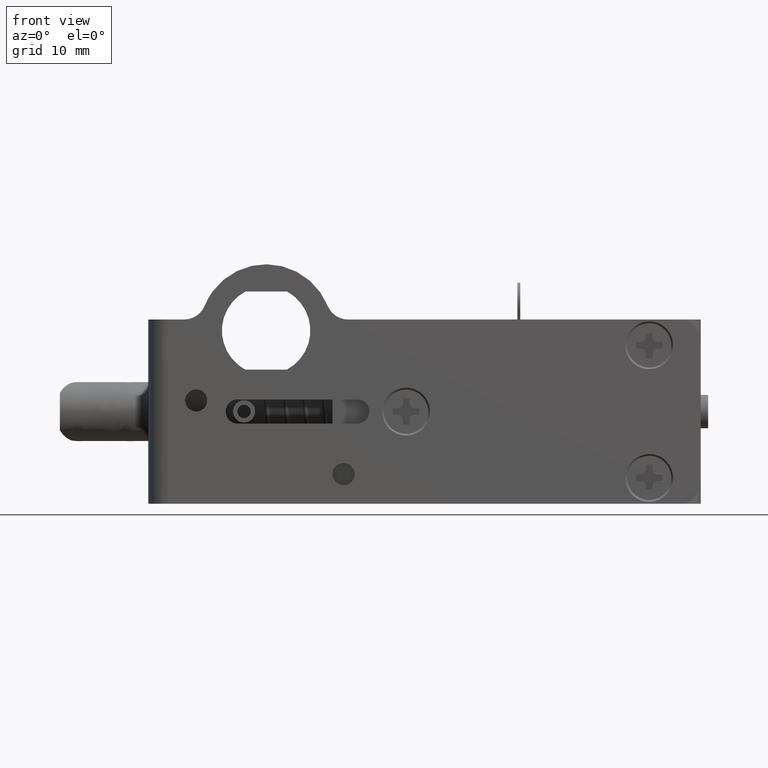
[diagram: clean part render]
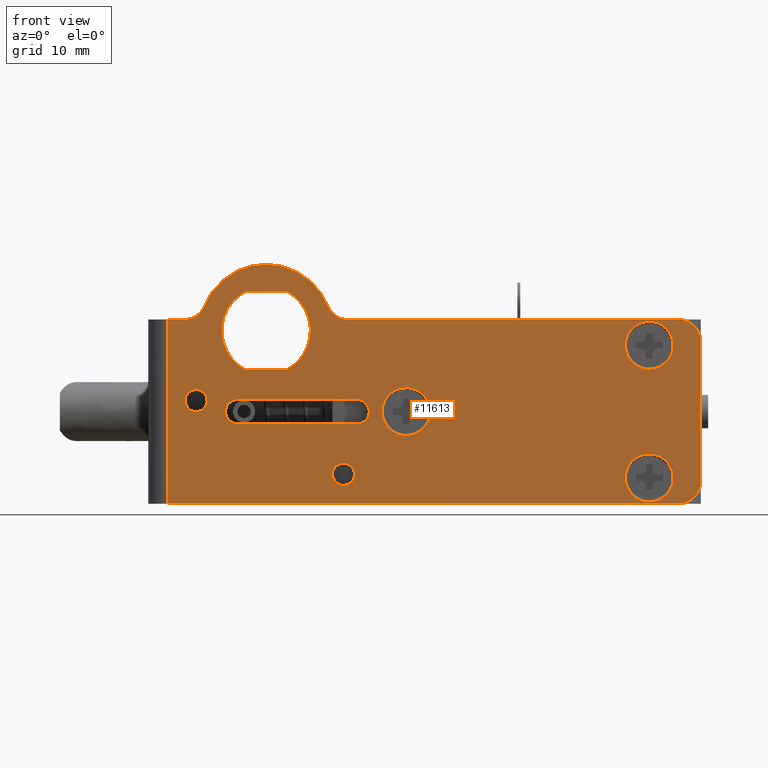
[diagram: same view with one face highlighted and labeled with its STEP entity id]
A machine part, front view. The second image highlights one B-rep face of the part: STEP entity #11613.
In plain terms, the highlighted face is a freeform B-spline surface patch.
Its self-contained STEP definition (entity closure, byte-faithful):
#8399=CARTESIAN_POINT('',(20.142758416794770,-2.124099E-012,-7.957533368981917));
#8400=VERTEX_POINT('',#8399);
#8406=CARTESIAN_POINT('',(19.0,0.0,-7.750000000000000));
#8407=VERTEX_POINT('',#8406);
#8408=CARTESIAN_POINT('',(20.142758416794774,-2.124099E-012,-7.957533368981917));
#8409=CARTESIAN_POINT('',(19.590224004740602,0.0,-7.750000000000000));
#8410=CARTESIAN_POINT('',(19.0,0.0,-7.750000000000000));
#8418=(BOUNDED_CURVE()B_SPLINE_CURVE(2,(#8408,#8409,#8410),.UNSPECIFIED.,.F.,.U.)B_SPLINE_CURVE_WITH_KNOTS((3,3),(0.440284170896686,0.500000000000000),.UNSPECIFIED.)CURVE()GEOMETRIC_REPRESENTATION_ITEM()RATIONAL_B_SPLINE_CURVE((0.893499554633045,0.930038554399266,1.0))REPRESENTATION_ITEM(''));
#8419=EDGE_CURVE('',#8400,#8407,#8418,.T.);
#8421=CARTESIAN_POINT('',(15.756061905097990,-5.793479E-011,-10.801592246068680));
#8422=VERTEX_POINT('',#8421);
#8423=CARTESIAN_POINT('',(19.0,0.0,-7.750000000000000));
#8424=CARTESIAN_POINT('',(15.942705283386474,0.0,-7.750000000000001));
#8425=CARTESIAN_POINT('',(15.756061905097992,-5.793479E-011,-10.801592246068680));
#8433=(BOUNDED_CURVE()B_SPLINE_CURVE(2,(#8423,#8424,#8425),.UNSPECIFIED.,.F.,.U.)B_SPLINE_CURVE_WITH_KNOTS((3,3),(0.500000000000000,0.739332962195213),.UNSPECIFIED.)CURVE()GEOMETRIC_REPRESENTATION_ITEM()RATIONAL_B_SPLINE_CURVE((1.0,0.719603993337942,0.976072041572997))REPRESENTATION_ITEM(''));
#8434=EDGE_CURVE('',#8407,#8422,#8433,.T.);
#8529=CARTESIAN_POINT('',(19.0,0.0,-14.250000000000000));
#8530=VERTEX_POINT('',#8529);
#8531=CARTESIAN_POINT('',(15.756061905097987,-5.793479E-011,-10.801592246068674));
#8532=CARTESIAN_POINT('',(15.749999999999998,0.0,-10.900703518838855));
#8533=CARTESIAN_POINT('',(15.750000000000000,0.0,-11.0));
#8534=CARTESIAN_POINT('',(15.749999999999995,0.0,-14.249999999999998));
#8535=CARTESIAN_POINT('',(19.0,0.0,-14.250000000000000));
#8543=(BOUNDED_CURVE()B_SPLINE_CURVE(2,(#8531,#8532,#8533,#8534,#8535),.UNSPECIFIED.,.F.,.U.)B_SPLINE_CURVE_WITH_KNOTS((3,2,3),(0.739332962195213,0.750000000000000,1.0),.UNSPECIFIED.)CURVE()GEOMETRIC_REPRESENTATION_ITEM()RATIONAL_B_SPLINE_CURVE((0.976072041572997,0.987502787848605,1.0,0.707106781186547,1.0))REPRESENTATION_ITEM(''));
#8544=EDGE_CURVE('',#8422,#8530,#8543,.T.);
#8546=CARTESIAN_POINT('',(19.0,0.0,-14.250000000000000));
#8547=CARTESIAN_POINT('',(22.250000000000000,0.0,-14.249999999999998));
#8548=CARTESIAN_POINT('',(22.250000000000000,0.0,-11.0));
#8549=CARTESIAN_POINT('',(22.250000000000004,0.0,-8.749018814026979));
#8550=CARTESIAN_POINT('',(20.142758416794766,-2.124099E-012,-7.957533368981917));
#8558=(BOUNDED_CURVE()B_SPLINE_CURVE(2,(#8546,#8547,#8548,#8549,#8550),.UNSPECIFIED.,.F.,.U.)B_SPLINE_CURVE_WITH_KNOTS((3,2,3),(0.0,0.250000000000000,0.440284170896686),.UNSPECIFIED.)CURVE()GEOMETRIC_REPRESENTATION_ITEM()RATIONAL_B_SPLINE_CURVE((1.0,0.707106781186547,1.0,0.777068226787282,0.893499554633045))REPRESENTATION_ITEM(''));
#8559=EDGE_CURVE('',#8530,#8400,#8558,.T.);
#8727=CARTESIAN_POINT('',(53.142758416794770,-2.123900E-012,-16.957533368981920));
#8728=VERTEX_POINT('',#8727);
#8734=CARTESIAN_POINT('',(52.0,0.0,-16.750000000000000));
#8735=VERTEX_POINT('',#8734);
#8736=CARTESIAN_POINT('',(53.142758416794763,-2.123900E-012,-16.957533368981917));
#8737=CARTESIAN_POINT('',(52.590224004740598,0.0,-16.749999999999996));
#8738=CARTESIAN_POINT('',(52.0,0.0,-16.750000000000000));
#8746=(BOUNDED_CURVE()B_SPLINE_CURVE(2,(#8736,#8737,#8738),.UNSPECIFIED.,.F.,.U.)B_SPLINE_CURVE_WITH_KNOTS((3,3),(0.440284170896686,0.500000000000000),.UNSPECIFIED.)CURVE()GEOMETRIC_REPRESENTATION_ITEM()RATIONAL_B_SPLINE_CURVE((0.893499554633045,0.930038554399265,1.0))REPRESENTATION_ITEM(''));
#8747=EDGE_CURVE('',#8728,#8735,#8746,.T.);
#8749=CARTESIAN_POINT('',(48.756061905097980,-5.793797E-011,-19.801592246068669));
#8750=VERTEX_POINT('',#8749);
#8751=CARTESIAN_POINT('',(52.0,0.0,-16.750000000000000));
#8752=CARTESIAN_POINT('',(48.942705283386466,0.0,-16.750000000000007));
#8753=CARTESIAN_POINT('',(48.756061905097980,-5.793797E-011,-19.801592246068676));
#8761=(BOUNDED_CURVE()B_SPLINE_CURVE(2,(#8751,#8752,#8753),.UNSPECIFIED.,.F.,.U.)B_SPLINE_CURVE_WITH_KNOTS((3,3),(0.500000000000000,0.739332962195213),.UNSPECIFIED.)CURVE()GEOMETRIC_REPRESENTATION_ITEM()RATIONAL_B_SPLINE_CURVE((1.0,0.719603993337942,0.976072041572997))REPRESENTATION_ITEM(''));
#8762=EDGE_CURVE('',#8735,#8750,#8761,.T.);
#8857=CARTESIAN_POINT('',(52.0,0.0,-23.250000000000000));
#8858=VERTEX_POINT('',#8857);
#8859=CARTESIAN_POINT('',(48.756061905097980,-5.793797E-011,-19.801592246068676));
#8860=CARTESIAN_POINT('',(48.749999999999993,0.0,-19.900703518838853));
#8861=CARTESIAN_POINT('',(48.749999999999993,0.0,-20.0));
#8862=CARTESIAN_POINT('',(48.750000000000007,0.0,-23.250000000000004));
#8863=CARTESIAN_POINT('',(52.0,0.0,-23.250000000000000));
#8871=(BOUNDED_CURVE()B_SPLINE_CURVE(2,(#8859,#8860,#8861,#8862,#8863),.UNSPECIFIED.,.F.,.U.)B_SPLINE_CURVE_WITH_KNOTS((3,2,3),(0.739332962195213,0.750000000000000,1.0),.UNSPECIFIED.)CURVE()GEOMETRIC_REPRESENTATION_ITEM()RATIONAL_B_SPLINE_CURVE((0.976072041572997,0.987502787848605,1.0,0.707106781186547,1.0))REPRESENTATION_ITEM(''));
#8872=EDGE_CURVE('',#8750,#8858,#8871,.T.);
#8874=CARTESIAN_POINT('',(52.0,0.0,-23.250000000000000));
#8875=CARTESIAN_POINT('',(55.249999999999986,0.0,-23.250000000000004));
#8876=CARTESIAN_POINT('',(55.250000000000000,0.0,-20.0));
#8877=CARTESIAN_POINT('',(55.249999999999986,0.0,-17.749018814026979));
#8878=CARTESIAN_POINT('',(53.142758416794770,-2.123900E-012,-16.957533368981917));
#8886=(BOUNDED_CURVE()B_SPLINE_CURVE(2,(#8874,#8875,#8876,#8877,#8878),.UNSPECIFIED.,.F.,.U.)B_SPLINE_CURVE_WITH_KNOTS((3,2,3),(0.0,0.250000000000000,0.440284170896686),.UNSPECIFIED.)CURVE()GEOMETRIC_REPRESENTATION_ITEM()RATIONAL_B_SPLINE_CURVE((1.0,0.707106781186547,1.0,0.777068226787282,0.893499554633045))REPRESENTATION_ITEM(''));
#8887=EDGE_CURVE('',#8858,#8728,#8886,.T.);
#9055=CARTESIAN_POINT('',(53.142758416794763,-2.123612E-012,1.042466631018080));
#9056=VERTEX_POINT('',#9055);
#9062=CARTESIAN_POINT('',(52.0,0.0,1.250000000000000));
#9063=VERTEX_POINT('',#9062);
#9064=CARTESIAN_POINT('',(53.142758416794763,-2.123612E-012,1.042466631018080));
#9065=CARTESIAN_POINT('',(52.590224004740605,0.0,1.250000000000000));
#9066=CARTESIAN_POINT('',(52.0,0.0,1.250000000000000));
#9074=(BOUNDED_CURVE()B_SPLINE_CURVE(2,(#9064,#9065,#9066),.UNSPECIFIED.,.F.,.U.)B_SPLINE_CURVE_WITH_KNOTS((3,3),(0.440284170896686,0.500000000000000),.UNSPECIFIED.)CURVE()GEOMETRIC_REPRESENTATION_ITEM()RATIONAL_B_SPLINE_CURVE((0.893499554633045,0.930038554399265,1.0))REPRESENTATION_ITEM(''));
#9075=EDGE_CURVE('',#9056,#9063,#9074,.T.);
#9077=CARTESIAN_POINT('',(48.756061905097980,-5.793614E-011,-1.801592246068674));
#9078=VERTEX_POINT('',#9077);
#9079=CARTESIAN_POINT('',(52.0,0.0,1.250000000000000));
#9080=CARTESIAN_POINT('',(48.942705283386466,0.0,1.250000000000000));
#9081=CARTESIAN_POINT('',(48.756061905097980,-5.793614E-011,-1.801592246068674));
#9089=(BOUNDED_CURVE()B_SPLINE_CURVE(2,(#9079,#9080,#9081),.UNSPECIFIED.,.F.,.U.)B_SPLINE_CURVE_WITH_KNOTS((3,3),(0.500000000000000,0.739332962195213),.UNSPECIFIED.)CURVE()GEOMETRIC_REPRESENTATION_ITEM()RATIONAL_B_SPLINE_CURVE((1.0,0.719603993337942,0.976072041572997))REPRESENTATION_ITEM(''));
#9090=EDGE_CURVE('',#9063,#9078,#9089,.T.);
#9185=CARTESIAN_POINT('',(52.0,0.0,-5.249999999999999));
#9186=VERTEX_POINT('',#9185);
#9187=CARTESIAN_POINT('',(48.756061905097980,-5.793614E-011,-1.801592246068674));
#9188=CARTESIAN_POINT('',(48.749999999999993,0.0,-1.900703518838850));
#9189=CARTESIAN_POINT('',(48.749999999999993,0.0,-2.0));
#9190=CARTESIAN_POINT('',(48.750000000000007,0.0,-5.249999999999998));
#9191=CARTESIAN_POINT('',(52.0,0.0,-5.249999999999999));
#9199=(BOUNDED_CURVE()B_SPLINE_CURVE(2,(#9187,#9188,#9189,#9190,#9191),.UNSPECIFIED.,.F.,.U.)B_SPLINE_CURVE_WITH_KNOTS((3,2,3),(0.739332962195213,0.750000000000000,1.0),.UNSPECIFIED.)CURVE()GEOMETRIC_REPRESENTATION_ITEM()RATIONAL_B_SPLINE_CURVE((0.976072041572997,0.987502787848605,1.0,0.707106781186547,1.0))REPRESENTATION_ITEM(''));
#9200=EDGE_CURVE('',#9078,#9186,#9199,.T.);
#9202=CARTESIAN_POINT('',(52.0,0.0,-5.249999999999999));
#9203=CARTESIAN_POINT('',(55.249999999999986,0.0,-5.249999999999998));
#9204=CARTESIAN_POINT('',(55.250000000000000,0.0,-2.0));
#9205=CARTESIAN_POINT('',(55.249999999999993,0.0,0.250981185973011));
#9206=CARTESIAN_POINT('',(53.142758416794763,-2.123612E-012,1.042466631018080));
#9214=(BOUNDED_CURVE()B_SPLINE_CURVE(2,(#9202,#9203,#9204,#9205,#9206),.UNSPECIFIED.,.F.,.U.)B_SPLINE_CURVE_WITH_KNOTS((3,2,3),(0.0,0.250000000000000,0.440284170896686),.UNSPECIFIED.)CURVE()GEOMETRIC_REPRESENTATION_ITEM()RATIONAL_B_SPLINE_CURVE((1.0,0.707106781186547,1.0,0.777068226787283,0.893499554633044))REPRESENTATION_ITEM(''));
#9215=EDGE_CURVE('',#9186,#9056,#9214,.T.);
#9400=CARTESIAN_POINT('',(-8.004623999407816,-9.020562E-017,-9.617688643688407));
#9401=VERTEX_POINT('',#9400);
#9407=CARTESIAN_POINT('',(-9.499999999999901,0.0,-8.0));
#9408=VERTEX_POINT('',#9407);
#9409=CARTESIAN_POINT('',(-8.004623999407816,-9.020562E-017,-9.617688643688407));
#9410=CARTESIAN_POINT('',(-7.999999999999901,0.0,-9.558935160608593));
#9411=CARTESIAN_POINT('',(-7.999999999999901,0.0,-9.500000000000000));
#9412=CARTESIAN_POINT('',(-7.999999999999902,0.0,-8.0));
#9413=CARTESIAN_POINT('',(-9.499999999999901,0.0,-8.0));
#9421=(BOUNDED_CURVE()B_SPLINE_CURVE(2,(#9409,#9410,#9411,#9412,#9413),.UNSPECIFIED.,.F.,.U.)B_SPLINE_CURVE_WITH_KNOTS((3,2,3),(0.736331300610610,0.750000000000000,1.0),.UNSPECIFIED.)CURVE()GEOMETRIC_REPRESENTATION_ITEM()RATIONAL_B_SPLINE_CURVE((0.969723356125575,0.983986122555392,1.0,0.707106781186548,1.0))REPRESENTATION_ITEM(''));
#9422=EDGE_CURVE('',#9401,#9408,#9421,.T.);
#9424=CARTESIAN_POINT('',(-10.995376000591991,-9.020562E-017,-9.382311356311590));
#9425=VERTEX_POINT('',#9424);
#9426=CARTESIAN_POINT('',(-9.499999999999901,0.0,-8.0));
#9427=CARTESIAN_POINT('',(-10.886585737307437,0.0,-8.0));
#9428=CARTESIAN_POINT('',(-10.995376000591991,-9.020562E-017,-9.382311356311590));
#9436=(BOUNDED_CURVE()B_SPLINE_CURVE(2,(#9426,#9427,#9428),.UNSPECIFIED.,.F.,.U.)B_SPLINE_CURVE_WITH_KNOTS((3,3),(0.0,0.236331300610610),.UNSPECIFIED.)CURVE()GEOMETRIC_REPRESENTATION_ITEM()RATIONAL_B_SPLINE_CURVE((1.0,0.723120658631155,0.969723356125575))REPRESENTATION_ITEM(''));
#9437=EDGE_CURVE('',#9408,#9425,#9436,.T.);
#9483=CARTESIAN_POINT('',(-9.499999999999901,0.0,-11.0));
#9484=VERTEX_POINT('',#9483);
#9485=CARTESIAN_POINT('',(-10.995376000591982,-9.020562E-017,-9.382311356311590));
#9486=CARTESIAN_POINT('',(-10.999999999999908,0.0,-9.441064839391407));
#9487=CARTESIAN_POINT('',(-10.999999999999901,0.0,-9.500000000000000));
#9488=CARTESIAN_POINT('',(-10.999999999999901,0.0,-11.0));
#9489=CARTESIAN_POINT('',(-9.499999999999901,0.0,-11.0));
#9497=(BOUNDED_CURVE()B_SPLINE_CURVE(2,(#9485,#9486,#9487,#9488,#9489),.UNSPECIFIED.,.F.,.U.)B_SPLINE_CURVE_WITH_KNOTS((3,2,3),(0.236331300610610,0.250000000000000,0.500000000000000),.UNSPECIFIED.)CURVE()GEOMETRIC_REPRESENTATION_ITEM()RATIONAL_B_SPLINE_CURVE((0.969723356125575,0.983986122555392,1.0,0.707106781186548,1.0))REPRESENTATION_ITEM(''));
#9498=EDGE_CURVE('',#9425,#9484,#9497,.T.);
#9500=CARTESIAN_POINT('',(-9.499999999999901,0.0,-11.0));
#9501=CARTESIAN_POINT('',(-8.113414262692361,0.0,-11.0));
#9502=CARTESIAN_POINT('',(-8.004623999407816,-9.020562E-017,-9.617688643688407));
#9510=(BOUNDED_CURVE()B_SPLINE_CURVE(2,(#9500,#9501,#9502),.UNSPECIFIED.,.F.,.U.)B_SPLINE_CURVE_WITH_KNOTS((3,3),(0.500000000000000,0.736331300610610),.UNSPECIFIED.)CURVE()GEOMETRIC_REPRESENTATION_ITEM()RATIONAL_B_SPLINE_CURVE((1.0,0.723120658631155,0.969723356125577))REPRESENTATION_ITEM(''));
#9511=EDGE_CURVE('',#9484,#9401,#9510,.T.);
#9582=CARTESIAN_POINT('',(11.995376000592090,-9.020562E-017,-19.617688643688410));
#9583=VERTEX_POINT('',#9582);
#9589=CARTESIAN_POINT('',(10.500000000000000,0.0,-18.0));
#9590=VERTEX_POINT('',#9589);
#9591=CARTESIAN_POINT('',(11.995376000592088,-9.020562E-017,-19.617688643688414));
#9592=CARTESIAN_POINT('',(12.000000000000002,0.0,-19.558935160608595));
#9593=CARTESIAN_POINT('',(12.0,0.0,-19.500000000000000));
#9594=CARTESIAN_POINT('',(12.0,0.0,-18.000000000000007));
#9595=CARTESIAN_POINT('',(10.500000000000000,0.0,-18.0));
#9603=(BOUNDED_CURVE()B_SPLINE_CURVE(2,(#9591,#9592,#9593,#9594,#9595),.UNSPECIFIED.,.F.,.U.)B_SPLINE_CURVE_WITH_KNOTS((3,2,3),(0.736331300610609,0.750000000000000,1.0),.UNSPECIFIED.)CURVE()GEOMETRIC_REPRESENTATION_ITEM()RATIONAL_B_SPLINE_CURVE((0.969723356125574,0.983986122555392,1.0,0.707106781186548,1.0))REPRESENTATION_ITEM(''));
#9604=EDGE_CURVE('',#9583,#9590,#9603,.T.);
#9606=CARTESIAN_POINT('',(9.004623999407915,-9.020562E-017,-19.382311356311590));
#9607=VERTEX_POINT('',#9606);
#9608=CARTESIAN_POINT('',(10.500000000000000,0.0,-18.0));
#9609=CARTESIAN_POINT('',(9.113414262692469,0.0,-18.000000000000004));
#9610=CARTESIAN_POINT('',(9.004623999407915,-9.020562E-017,-19.382311356311590));
#9618=(BOUNDED_CURVE()B_SPLINE_CURVE(2,(#9608,#9609,#9610),.UNSPECIFIED.,.F.,.U.)B_SPLINE_CURVE_WITH_KNOTS((3,3),(0.0,0.236331300610609),.UNSPECIFIED.)CURVE()GEOMETRIC_REPRESENTATION_ITEM()RATIONAL_B_SPLINE_CURVE((1.0,0.723120658631156,0.969723356125574))REPRESENTATION_ITEM(''));
#9619=EDGE_CURVE('',#9590,#9607,#9618,.T.);
#9665=CARTESIAN_POINT('',(10.500000000000000,0.0,-21.0));
#9666=VERTEX_POINT('',#9665);
#9667=CARTESIAN_POINT('',(9.004623999407915,-9.020562E-017,-19.382311356311590));
#9668=CARTESIAN_POINT('',(9.000000000000002,0.0,-19.441064839391409));
#9669=CARTESIAN_POINT('',(9.000000000000002,0.0,-19.500000000000000));
#9670=CARTESIAN_POINT('',(9.000000000000002,0.0,-21.000000000000004));
#9671=CARTESIAN_POINT('',(10.500000000000000,0.0,-21.0));
#9679=(BOUNDED_CURVE()B_SPLINE_CURVE(2,(#9667,#9668,#9669,#9670,#9671),.UNSPECIFIED.,.F.,.U.)B_SPLINE_CURVE_WITH_KNOTS((3,2,3),(0.236331300610609,0.250000000000000,0.500000000000000),.UNSPECIFIED.)CURVE()GEOMETRIC_REPRESENTATION_ITEM()RATIONAL_B_SPLINE_CURVE((0.969723356125574,0.983986122555392,1.0,0.707106781186548,1.0))REPRESENTATION_ITEM(''));
#9680=EDGE_CURVE('',#9607,#9666,#9679,.T.);
#9682=CARTESIAN_POINT('',(10.500000000000000,0.0,-21.0));
#9683=CARTESIAN_POINT('',(11.886585737307524,0.0,-20.999999999999996));
#9684=CARTESIAN_POINT('',(11.995376000592087,-9.020562E-017,-19.617688643688414));
#9692=(BOUNDED_CURVE()B_SPLINE_CURVE(2,(#9682,#9683,#9684),.UNSPECIFIED.,.F.,.U.)B_SPLINE_CURVE_WITH_KNOTS((3,3),(0.500000000000000,0.736331300610608),.UNSPECIFIED.)CURVE()GEOMETRIC_REPRESENTATION_ITEM()RATIONAL_B_SPLINE_CURVE((1.0,0.723120658631157,0.969723356125572))REPRESENTATION_ITEM(''));
#9693=EDGE_CURVE('',#9666,#9583,#9692,.T.);
#10470=CARTESIAN_POINT('',(-13.400000000000000,0.0,-23.500000000000000));
#10471=VERTEX_POINT('',#10470);
#10487=CARTESIAN_POINT('',(-13.400000000000000,0.0,1.500000000000000));
#10488=VERTEX_POINT('',#10487);
#10489=CARTESIAN_POINT('',(-13.400000000000000,0.0,1.500000000000000));
#10490=CARTESIAN_POINT('',(-13.400000000000000,0.0,-23.500000000000000));
#10491=QUASI_UNIFORM_CURVE('',1,(#10489,#10490),.UNSPECIFIED.,.F.,.U.);
#10492=EDGE_CURVE('',#10488,#10471,#10491,.T.);
#10554=CARTESIAN_POINT('',(-3.854455714975485,0.0,-9.350005999999810));
#10555=VERTEX_POINT('',#10554);
#10561=CARTESIAN_POINT('',(-3.854455715080875,0.0,-12.649993999999900));
#10562=VERTEX_POINT('',#10561);
#10563=CARTESIAN_POINT('',(-3.854455714975484,0.0,-9.350005999999807));
#10564=CARTESIAN_POINT('',(-5.500005999947242,0.0,-9.354443731134762));
#10565=CARTESIAN_POINT('',(-5.500005999999796,0.0,-10.999999999947301));
#10566=CARTESIAN_POINT('',(-5.500006000052349,0.0,-12.645556268759844));
#10567=CARTESIAN_POINT('',(-3.854455715080874,0.0,-12.649993999999911));
#10575=(BOUNDED_CURVE()B_SPLINE_CURVE(2,(#10563,#10564,#10565,#10566,#10567),.UNSPECIFIED.,.F.,.U.)B_SPLINE_CURVE_WITH_KNOTS((3,2,3),(0.0,0.500000000000000,1.0),.UNSPECIFIED.)CURVE()GEOMETRIC_REPRESENTATION_ITEM()RATIONAL_B_SPLINE_CURVE((1.0,0.708059600947159,1.0,0.708059600947159,1.0))REPRESENTATION_ITEM(''));
#10576=EDGE_CURVE('',#10555,#10562,#10575,.T.);
#10598=CARTESIAN_POINT('',(12.354455714975900,0.0,-9.350005999999810));
#10599=VERTEX_POINT('',#10598);
#10605=CARTESIAN_POINT('',(12.354455714975900,0.0,-9.350005999999810));
#10606=CARTESIAN_POINT('',(-3.854455714975485,0.0,-9.350005999999810));
#10607=QUASI_UNIFORM_CURVE('',1,(#10605,#10606),.UNSPECIFIED.,.F.,.U.);
#10608=EDGE_CURVE('',#10599,#10555,#10607,.T.);
#10649=CARTESIAN_POINT('',(12.354455715081301,0.0,-12.649993999999900));
#10650=VERTEX_POINT('',#10649);
#10656=CARTESIAN_POINT('',(12.354455715081301,0.0,-12.649993999999911));
#10657=CARTESIAN_POINT('',(14.000006000052760,0.0,-12.645556268759828));
#10658=CARTESIAN_POINT('',(14.000006000000200,0.0,-10.999999999947301));
#10659=CARTESIAN_POINT('',(14.000005999947639,0.0,-9.354443731134772));
#10660=CARTESIAN_POINT('',(12.354455714975900,0.0,-9.350005999999807));
#10668=(BOUNDED_CURVE()B_SPLINE_CURVE(2,(#10656,#10657,#10658,#10659,#10660),.UNSPECIFIED.,.F.,.U.)B_SPLINE_CURVE_WITH_KNOTS((3,2,3),(0.0,0.500000000000000,1.0),.UNSPECIFIED.)CURVE()GEOMETRIC_REPRESENTATION_ITEM()RATIONAL_B_SPLINE_CURVE((1.0,0.708059600947162,1.0,0.708059600947162,1.0))REPRESENTATION_ITEM(''));
#10669=EDGE_CURVE('',#10650,#10599,#10668,.T.);
#10686=CARTESIAN_POINT('',(-3.854455715080875,0.0,-12.649993999999900));
#10687=CARTESIAN_POINT('',(12.354455715081301,0.0,-12.649993999999900));
#10688=QUASI_UNIFORM_CURVE('',1,(#10686,#10687),.UNSPECIFIED.,.F.,.U.);
#10689=EDGE_CURVE('',#10562,#10650,#10688,.T.);
#10831=CARTESIAN_POINT('',(2.812468465788615,0.0,-5.300001993296291));
#10832=VERTEX_POINT('',#10831);
#10833=CARTESIAN_POINT('',(2.812472352593505,0.0,5.299999930745020));
#10834=VERTEX_POINT('',#10833);
#10835=CARTESIAN_POINT('',(2.812468465788614,0.0,-5.300001993296291));
#10836=CARTESIAN_POINT('',(5.999998676827532,0.0,-3.608525610148766));
#10837=CARTESIAN_POINT('',(5.999999999999597,0.0,-0.000002200077838));
#10838=CARTESIAN_POINT('',(6.000001323171661,0.0,3.608521209993084));
#10839=CARTESIAN_POINT('',(2.812472352593505,0.0,5.299999930745015));
#10847=(BOUNDED_CURVE()B_SPLINE_CURVE(2,(#10835,#10836,#10837,#10838,#10839),.UNSPECIFIED.,.F.,.U.)B_SPLINE_CURVE_WITH_KNOTS((3,2,3),(0.0,0.500000000000000,1.0),.UNSPECIFIED.)CURVE()GEOMETRIC_REPRESENTATION_ITEM()RATIONAL_B_SPLINE_CURVE((1.0,0.856955386294567,1.0,0.856955386294567,1.0))REPRESENTATION_ITEM(''));
#10848=EDGE_CURVE('',#10832,#10834,#10847,.T.);
#10887=CARTESIAN_POINT('',(-2.812471242564055,0.0,-5.300000519787729));
#10888=VERTEX_POINT('',#10887);
#10889=CARTESIAN_POINT('',(-2.812471242564055,0.0,-5.300000519787729));
#10890=CARTESIAN_POINT('',(2.812468465788615,0.0,-5.300001993296291));
#10891=QUASI_UNIFORM_CURVE('',1,(#10889,#10890),.UNSPECIFIED.,.F.,.U.);
#10892=EDGE_CURVE('',#10888,#10832,#10891,.T.);
#10924=CARTESIAN_POINT('',(-2.812472167588605,0.0,5.300000028918820));
#10925=VERTEX_POINT('',#10924);
#10926=CARTESIAN_POINT('',(-2.812472167588603,0.0,5.300000028918817));
#10927=CARTESIAN_POINT('',(-6.000000314902962,0.0,3.608521887633656));
#10928=CARTESIAN_POINT('',(-5.999999999999978,0.0,-0.000000523598773));
#10929=CARTESIAN_POINT('',(-5.999999685096993,0.0,-3.608522934831204));
#10930=CARTESIAN_POINT('',(-2.812471242564056,0.0,-5.300000519787729));
#10938=(BOUNDED_CURVE()B_SPLINE_CURVE(2,(#10926,#10927,#10928,#10929,#10930),.UNSPECIFIED.,.F.,.U.)B_SPLINE_CURVE_WITH_KNOTS((3,2,3),(0.0,0.500000000000000,1.0),.UNSPECIFIED.)CURVE()GEOMETRIC_REPRESENTATION_ITEM()RATIONAL_B_SPLINE_CURVE((1.0,0.856955449302760,1.0,0.856955449302760,1.0))REPRESENTATION_ITEM(''));
#10939=EDGE_CURVE('',#10925,#10888,#10938,.T.);
#10972=CARTESIAN_POINT('',(2.812472352593505,0.0,5.299999930745020));
#10973=CARTESIAN_POINT('',(-2.812472167588605,0.0,5.300000028918820));
#10974=QUASI_UNIFORM_CURVE('',1,(#10972,#10973),.UNSPECIFIED.,.F.,.U.);
#10975=EDGE_CURVE('',#10834,#10925,#10974,.T.);
#11128=CARTESIAN_POINT('',(59.0,0.0,-20.500000000000000));
#11129=VERTEX_POINT('',#11128);
#11135=CARTESIAN_POINT('',(55.999999842920602,0.0,-23.500000000000000));
#11136=VERTEX_POINT('',#11135);
#11137=CARTESIAN_POINT('',(55.999999842920602,0.0,-23.500000000000000));
#11138=CARTESIAN_POINT('',(57.242640576047386,0.0,-23.500000065064420));
#11139=CARTESIAN_POINT('',(58.121320288023682,0.0,-22.621320399095602));
#11140=CARTESIAN_POINT('',(59.000000000000007,0.0,-21.742640733126780));
#11141=CARTESIAN_POINT('',(59.000000000000007,0.0,-20.500000000000000));
#11149=(BOUNDED_CURVE()B_SPLINE_CURVE(2,(#11137,#11138,#11139,#11140,#11141),.UNSPECIFIED.,.F.,.U.)B_SPLINE_CURVE_WITH_KNOTS((3,2,3),(0.0,0.500000000000000,1.0),.UNSPECIFIED.)CURVE()GEOMETRIC_REPRESENTATION_ITEM()RATIONAL_B_SPLINE_CURVE((1.0,0.923879527501979,1.0,0.923879527501979,1.0))REPRESENTATION_ITEM(''));
#11150=EDGE_CURVE('',#11136,#11129,#11149,.T.);
#11173=CARTESIAN_POINT('',(59.0,0.0,-1.500000000000000));
#11174=VERTEX_POINT('',#11173);
#11180=CARTESIAN_POINT('',(59.0,0.0,-1.500000000000000));
#11181=CARTESIAN_POINT('',(59.0,0.0,-20.500000000000000));
#11182=QUASI_UNIFORM_CURVE('',1,(#11180,#11181),.UNSPECIFIED.,.F.,.U.);
#11183=EDGE_CURVE('',#11174,#11129,#11182,.T.);
#11217=CARTESIAN_POINT('',(56.0,0.0,1.500000000000000));
#11218=VERTEX_POINT('',#11217);
#11224=CARTESIAN_POINT('',(59.000000000000007,0.0,-1.500000000000000));
#11225=CARTESIAN_POINT('',(59.0,0.0,1.500000000000000));
#11226=CARTESIAN_POINT('',(56.0,0.0,1.500000000000000));
#11234=(BOUNDED_CURVE()B_SPLINE_CURVE(2,(#11224,#11225,#11226),.UNSPECIFIED.,.F.,.U.)CURVE()GEOMETRIC_REPRESENTATION_ITEM()QUASI_UNIFORM_CURVE()RATIONAL_B_SPLINE_CURVE((1.0,0.707106781186548,1.0))REPRESENTATION_ITEM(''));
#11235=EDGE_CURVE('',#11174,#11218,#11234,.T.);
#11254=CARTESIAN_POINT('',(11.124297842920360,0.0,1.500000000000000));
#11255=VERTEX_POINT('',#11254);
#11261=CARTESIAN_POINT('',(11.124297842920360,0.0,1.500000000000000));
#11262=CARTESIAN_POINT('',(56.0,0.0,1.500000000000000));
#11263=QUASI_UNIFORM_CURVE('',1,(#11261,#11262),.UNSPECIFIED.,.F.,.U.);
#11264=EDGE_CURVE('',#11255,#11218,#11263,.T.);
#11299=CARTESIAN_POINT('',(8.343223347288470,0.0,3.374999878112665));
#11300=VERTEX_POINT('',#11299);
#11306=CARTESIAN_POINT('',(8.343223347288470,0.0,3.374999878112665));
#11307=CARTESIAN_POINT('',(9.101698391932979,0.0,1.500000105903067));
#11308=CARTESIAN_POINT('',(11.124297842920360,0.0,1.500000000000004));
#11316=(BOUNDED_CURVE()B_SPLINE_CURVE(2,(#11306,#11307,#11308),.UNSPECIFIED.,.F.,.U.)CURVE()GEOMETRIC_REPRESENTATION_ITEM()QUASI_UNIFORM_CURVE()RATIONAL_B_SPLINE_CURVE((1.0,0.829156215063090,1.0))REPRESENTATION_ITEM(''));
#11317=EDGE_CURVE('',#11300,#11255,#11316,.T.);
#11357=CARTESIAN_POINT('',(-8.343223524003038,0.0,3.374999441262525));
#11358=VERTEX_POINT('',#11357);
#11364=CARTESIAN_POINT('',(8.343223347288472,0.0,3.374999878112667));
#11365=CARTESIAN_POINT('',(6.067798793532807,0.0,9.000000158854597));
#11366=CARTESIAN_POINT('',(-0.000000235619442,0.0,8.999999999999996));
#11367=CARTESIAN_POINT('',(-6.067799264771691,0.0,8.999999841145396));
#11368=CARTESIAN_POINT('',(-8.343223524003037,0.0,3.374999441262523));
#11376=(BOUNDED_CURVE()B_SPLINE_CURVE(2,(#11364,#11365,#11366,#11367,#11368),.UNSPECIFIED.,.F.,.U.)B_SPLINE_CURVE_WITH_KNOTS((3,2,3),(0.0,0.500000000000000,1.0),.UNSPECIFIED.)CURVE()GEOMETRIC_REPRESENTATION_ITEM()RATIONAL_B_SPLINE_CURVE((1.0,0.829156186187955,1.0,0.829156186187955,1.0))REPRESENTATION_ITEM(''));
#11377=EDGE_CURVE('',#11300,#11358,#11376,.T.);
#11413=CARTESIAN_POINT('',(-11.124297999999900,0.0,1.500000000000000));
#11414=VERTEX_POINT('',#11413);
#11420=CARTESIAN_POINT('',(-11.124297999999900,0.0,1.500000000000000));
#11421=CARTESIAN_POINT('',(-9.101698777491947,0.0,1.499999999999999));
#11422=CARTESIAN_POINT('',(-8.343223524003038,0.0,3.374999441262525));
#11430=(BOUNDED_CURVE()B_SPLINE_CURVE(2,(#11420,#11421,#11422),.UNSPECIFIED.,.F.,.U.)CURVE()GEOMETRIC_REPRESENTATION_ITEM()QUASI_UNIFORM_CURVE()RATIONAL_B_SPLINE_CURVE((1.0,0.829156244333146,1.0))REPRESENTATION_ITEM(''));
#11431=EDGE_CURVE('',#11414,#11358,#11430,.T.);
#11455=CARTESIAN_POINT('',(-13.400000000000000,0.0,1.500000000000000));
#11456=CARTESIAN_POINT('',(-11.124297999999900,0.0,1.500000000000000));
#11457=QUASI_UNIFORM_CURVE('',1,(#11455,#11456),.UNSPECIFIED.,.F.,.U.);
#11458=EDGE_CURVE('',#10488,#11414,#11457,.T.);
#11476=CARTESIAN_POINT('',(55.999999842920602,0.0,-23.500000000000000));
#11477=CARTESIAN_POINT('',(-13.400000000000000,0.0,-23.500000000000000));
#11478=QUASI_UNIFORM_CURVE('',1,(#11476,#11477),.UNSPECIFIED.,.F.,.U.);
#11479=EDGE_CURVE('',#11136,#10471,#11478,.T.);
#11554=CARTESIAN_POINT('',(-17.016379859674760,0.0,10.623374937008640));
#11555=CARTESIAN_POINT('',(62.616381801594081,0.0,10.623374937008640));
#11556=CARTESIAN_POINT('',(-17.016379859674760,0.0,-25.123375808726632));
#11557=CARTESIAN_POINT('',(62.616381801594081,0.0,-25.123375808726632));
#11558=B_SPLINE_SURFACE_WITH_KNOTS('',1,1,((#11554,#11556),(#11555,#11557)),.UNSPECIFIED.,.F.,.F.,.U.,(2,2),(2,2),(0.0,79.632761661268844),(0.0,35.746750745735270),.UNSPECIFIED.);
#11559=ORIENTED_EDGE('',*,*,#11458,.F.);
#11560=ORIENTED_EDGE('',*,*,#10492,.T.);
#11561=ORIENTED_EDGE('',*,*,#11479,.F.);
#11562=ORIENTED_EDGE('',*,*,#11150,.T.);
#11563=ORIENTED_EDGE('',*,*,#11183,.F.);
#11564=ORIENTED_EDGE('',*,*,#11235,.T.);
#11565=ORIENTED_EDGE('',*,*,#11264,.F.);
#11566=ORIENTED_EDGE('',*,*,#11317,.F.);
#11567=ORIENTED_EDGE('',*,*,#11377,.T.);
#11568=ORIENTED_EDGE('',*,*,#11431,.F.);
#11569=EDGE_LOOP('',(#11559,#11560,#11561,#11562,#11563,#11564,#11565,#11566,#11567,#11568));
#11570=FACE_OUTER_BOUND('',#11569,.T.);
#11571=ORIENTED_EDGE('',*,*,#10669,.F.);
#11572=ORIENTED_EDGE('',*,*,#10689,.F.);
#11573=ORIENTED_EDGE('',*,*,#10576,.F.);
#11574=ORIENTED_EDGE('',*,*,#10608,.F.);
#11575=EDGE_LOOP('',(#11571,#11572,#11573,#11574));
#11576=FACE_BOUND('',#11575,.T.);
#11577=ORIENTED_EDGE('',*,*,#10975,.F.);
#11578=ORIENTED_EDGE('',*,*,#10848,.F.);
#11579=ORIENTED_EDGE('',*,*,#10892,.F.);
#11580=ORIENTED_EDGE('',*,*,#10939,.F.);
#11581=EDGE_LOOP('',(#11577,#11578,#11579,#11580));
#11582=FACE_BOUND('',#11581,.T.);
#11583=ORIENTED_EDGE('',*,*,#9693,.F.);
#11584=ORIENTED_EDGE('',*,*,#9680,.F.);
#11585=ORIENTED_EDGE('',*,*,#9619,.F.);
#11586=ORIENTED_EDGE('',*,*,#9604,.F.);
#11587=EDGE_LOOP('',(#11583,#11584,#11585,#11586));
#11588=FACE_BOUND('',#11587,.T.);
#11589=ORIENTED_EDGE('',*,*,#9511,.F.);
#11590=ORIENTED_EDGE('',*,*,#9498,.F.);
#11591=ORIENTED_EDGE('',*,*,#9437,.F.);
#11592=ORIENTED_EDGE('',*,*,#9422,.F.);
#11593=EDGE_LOOP('',(#11589,#11590,#11591,#11592));
#11594=FACE_BOUND('',#11593,.T.);
#11595=ORIENTED_EDGE('',*,*,#9090,.F.);
#11596=ORIENTED_EDGE('',*,*,#9075,.F.);
#11597=ORIENTED_EDGE('',*,*,#9215,.F.);
#11598=ORIENTED_EDGE('',*,*,#9200,.F.);
#11599=EDGE_LOOP('',(#11595,#11596,#11597,#11598));
#11600=FACE_BOUND('',#11599,.T.);
#11601=ORIENTED_EDGE('',*,*,#8762,.F.);
#11602=ORIENTED_EDGE('',*,*,#8747,.F.);
#11603=ORIENTED_EDGE('',*,*,#8887,.F.);
#11604=ORIENTED_EDGE('',*,*,#8872,.F.);
#11605=EDGE_LOOP('',(#11601,#11602,#11603,#11604));
#11606=FACE_BOUND('',#11605,.T.);
#11607=ORIENTED_EDGE('',*,*,#8434,.F.);
#11608=ORIENTED_EDGE('',*,*,#8419,.F.);
#11609=ORIENTED_EDGE('',*,*,#8559,.F.);
#11610=ORIENTED_EDGE('',*,*,#8544,.F.);
#11611=EDGE_LOOP('',(#11607,#11608,#11609,#11610));
#11612=FACE_BOUND('',#11611,.T.);
#11613=ADVANCED_FACE('',(#11570,#11576,#11582,#11588,#11594,#11600,#11606,#11612),#11558,.F.);